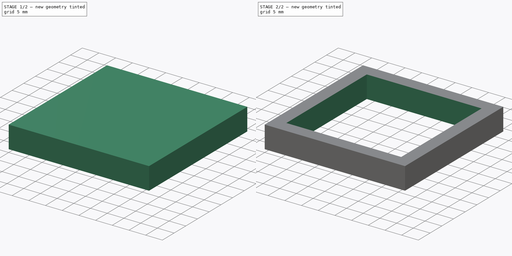
[diagram: build sequence overview — one tinted view per stage of 2, left to right]
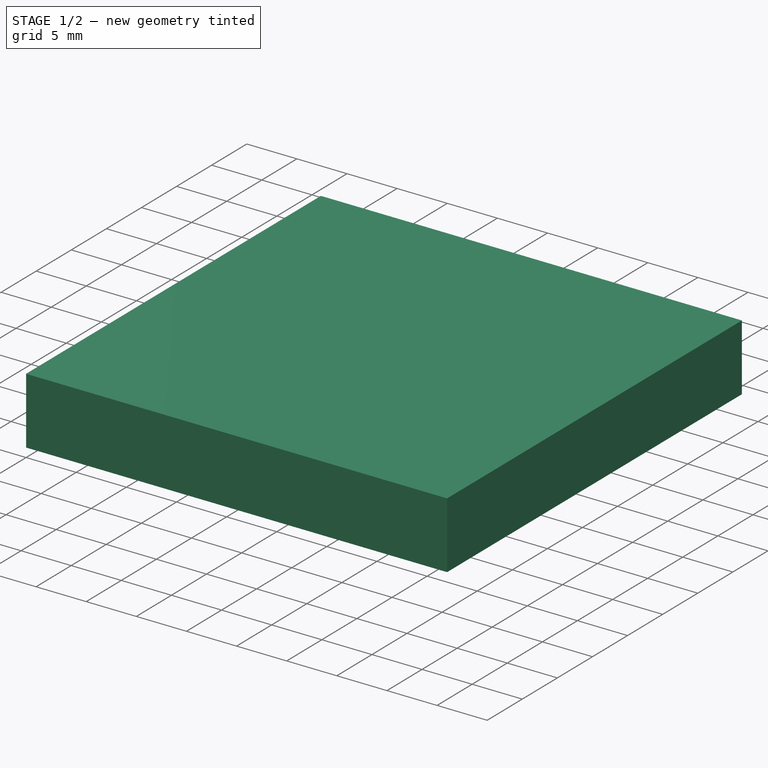
[diagram: stage 1 of 2 — iso view after this stage's code; geometry added in this stage tinted green]
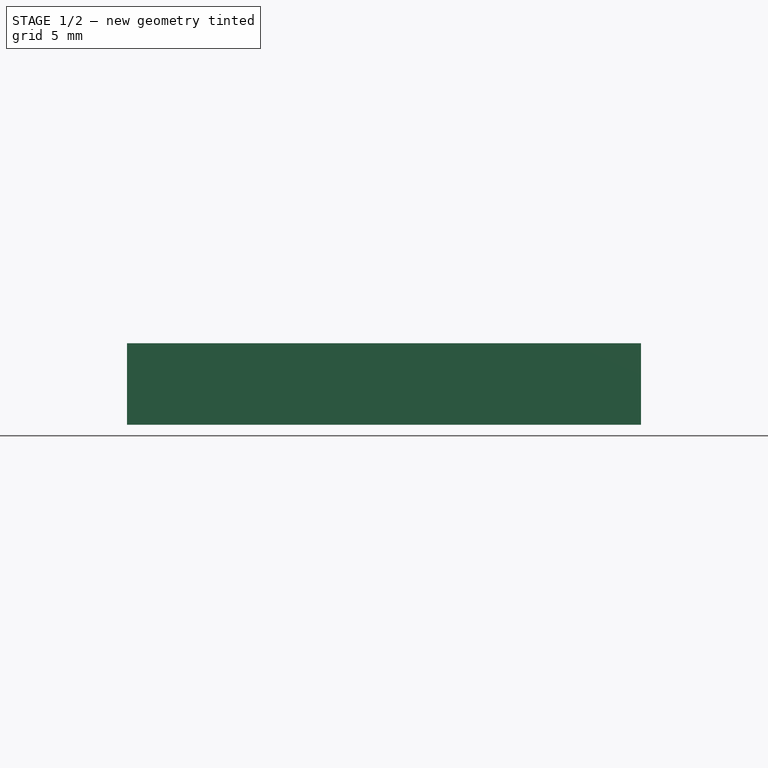
[diagram: stage 1 of 2 — front view after this stage's code; geometry added in this stage tinted green]
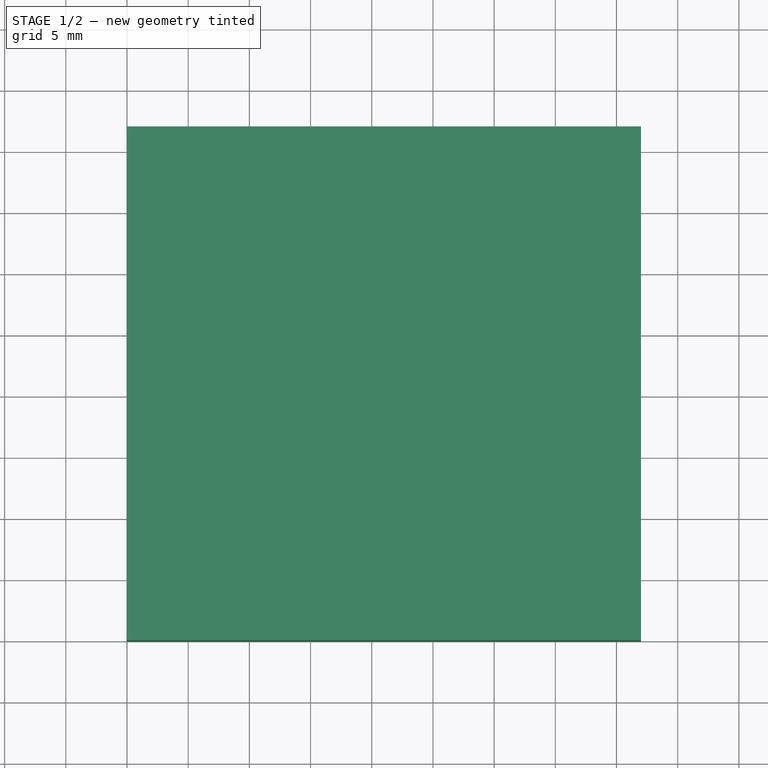
[diagram: stage 1 of 2 — top view after this stage's code; geometry added in this stage tinted green]
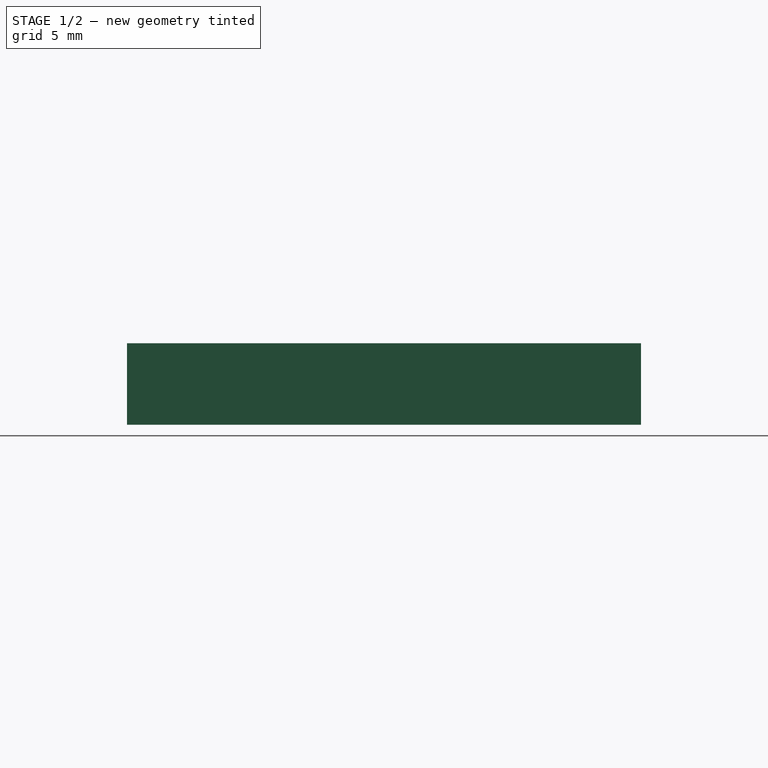
[diagram: stage 1 of 2 — right view after this stage's code; geometry added in this stage tinted green]
FCSTD DOCUMENT  (FreeCAD 2023.131R26244 +5365 (Git))
Label: Gridfinity
License: All rights reserved
LicenseURL: http://en.wikipedia.org/wiki/All_rights_reserved
objects: Sketcher::SketchObject×2, Spreadsheet::Sheet×1, PartDesign::Pad×1, PartDesign::Pocket×1, PartDesign::Body×1
note: 11 computed .brp shape members not serialized (recipe doc carries the construction recipe); baked Part::Feature solids carry a one-line shape summary decoded from their .brp

FEATURE [Spreadsheet::Sheet] Spreadsheet  label="Parameters"
  PythonMode = false
  ShowCells = 0
  TreeRank = 1
  cells = A1=User Defined Parameters; A2=Columns; B2(Columns)=1; A3=Rows; B3(Rows)=1; A5=Calculated Parameters; A6=Baseplate Width; B6(Baseplate_Width)==Columns * Grid_Size; A7=Baseplate Length; B7(Baseplate_Length)==Rows * Grid_Size; A8=Container Width; B8(Container_Width)==Baseplate_Width - 0.5; A9=Container Length; B9(Container_Length)==Baseplate_Length - 0.5; A11=General Parameters; A12=Width & Length; B12(Grid_Size)=42; A13=Layer 1 Height; B13(Layer1_Height)=0.7; C13=Used on baseplate and containers to make parts nest together; A14=Layer 1 Angle; B14(Layer1_Angle)=45; C14=Used on baseplate and containers to make parts nest together; A15=Layer 2 Height; B15(Layer2_Height)=1.8; C15=Used on baseplate and containers to make parts nest together; A16=Layer 2 Angle; B16(Layer2_Angle)=90; C16=Used on baseplate and containers to make parts nest together; A17=Layer 3 Height; B17(Layer3_Height)=2.15; C17=Used on baseplate and containers to make parts nest together; A18=Layer 3 Angle; B18(Layer3_Angle)=45; C18=Used on baseplate and containers to make parts nest together; A19=Magnet Diameter; B19(Magnet_Diameter)=6; C19=Used on baseplate and containers.; A20=Magnet Height; B20(Magnet_Height)=2; C20=Used on baseplate and containers. Set to zero to disable.; A22=Baseplate Parameters; A23=Total Height; B23(Baseplate_Height)==Layer1_Height + Layer2_Height + Layer3_Height + Magnet_Height; A24=Corner Radius; B24(Baseplate_Corner_Radius)=8; A25=Wall Thickness; B25(Baseplate_Wall_Thickness)==Layer3_Height * sin(Layer3_Angle) + Layer2_Height * sin(Layer2_Angle) + Layer1_Height * sin(Layer1_Angle); A27=Container Parameters; A28=Internal Height; B28(Container_Height)=7; C28=Typically a multiple of 7mm. 1U = 7mm, 2U = 14mm, 4U = 28mm, etc.; A29=Wall Thickness; B29(Wall_Thickness)=2.15; A30=Wall Radius; B30(Container_Wall_Radius)=7.5; A31=Base Radius; B31(Container_Base_Radius)=1.6; A32=Magnet Offset; B32(Container_Magnet_Offset)=4.8
FEATURE [Sketcher::SketchObject] Sketch
  ArcFitTolerance = 1e-06
  AttachmentSupport = -> [XY_Plane]
  ExternalBSplineMaxDegree = 5
  ExternalBSplineTolerance = 0.0001
  FullyConstrained = true
  InternalTolerance = 1e-06
  InvalidShape = false
  MakeInternals = false
  MapMode = 5
  Support = -> [XY_Plane]
  TreeRank = 12
  ValidateShape = true
  expr: Constraints[10] = <<Parameters>>.Baseplate_Length
  expr: Constraints[9] = <<Parameters>>.Baseplate_Width
  sketch-geometry (4):
    g0: LineSegment StartX=0 StartY=0 StartZ=0 EndX=42 EndY=0 EndZ=0
    g1: LineSegment StartX=42 StartY=0 StartZ=0 EndX=42 EndY=42 EndZ=0
    g2: LineSegment StartX=42 StartY=42 StartZ=0 EndX=0 EndY=42 EndZ=0
    g3: LineSegment StartX=0 StartY=42 StartZ=0 EndX=0 EndY=0 EndZ=0
  constraints (11):
    c: Coincident(g0,g1)
    c: Coincident(g1,g2)
    c: Coincident(g2,g3)
    c: Coincident(g3,g0)
    c: Horizontal(g0)
    c: Horizontal(g2)
    c: Vertical(g1)
    c: Vertical(g3)
    c: Coincident(g0,g-1)
    c: DistanceX(g0,g0) = 42
    c: DistanceY(g0,g2) = 42
FEATURE [PartDesign::Pad] Pad
  AddSubType = 0
  AlongSketchNormal = false
  AutoTaperInnerAngle = true
  CheckUpToFaceLimits = true
  ClaimChildren = false
  Direction = (0,0,1)
  Fit = 0
  FitJoin = 0
  InnerFit = 0
  InnerFitJoin = 0
  InvalidShape = false
  Length = 6.65
  Length2 = 100
  Linearize = true
  NewSolid = false
  Profile = -> Sketch
  Suppress = false
  TaperInnerAngle = 0
  TaperInnerAngleRev = 0
  TreeRank = 13
  Type = 0
  ValidateShape = true
  _ProfileBasedVersion = 1
  expr: Length = <<Parameters>>.Baseplate_Height
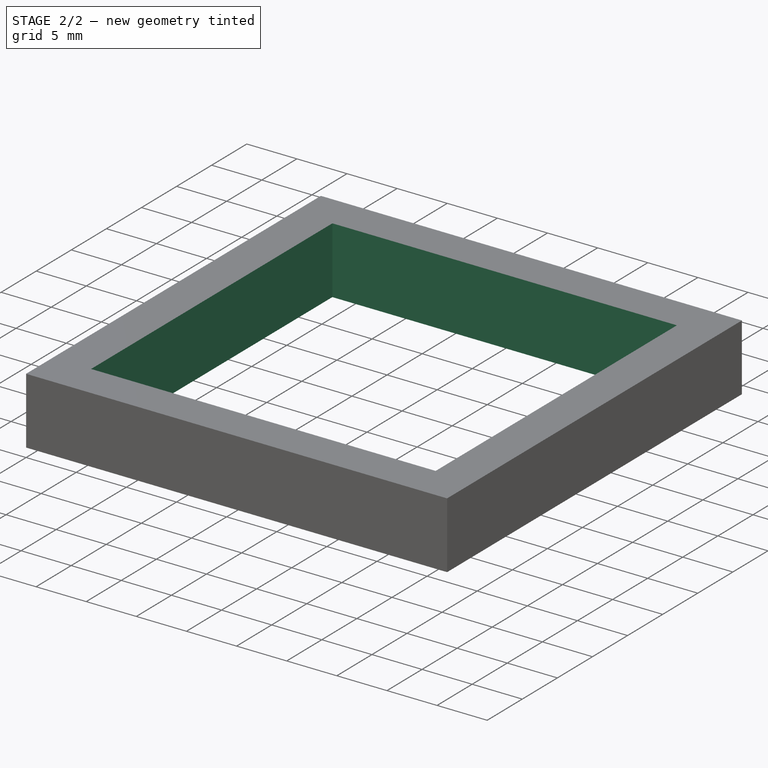
[diagram: stage 2 of 2 — iso view after this stage's code; geometry added in this stage tinted green]
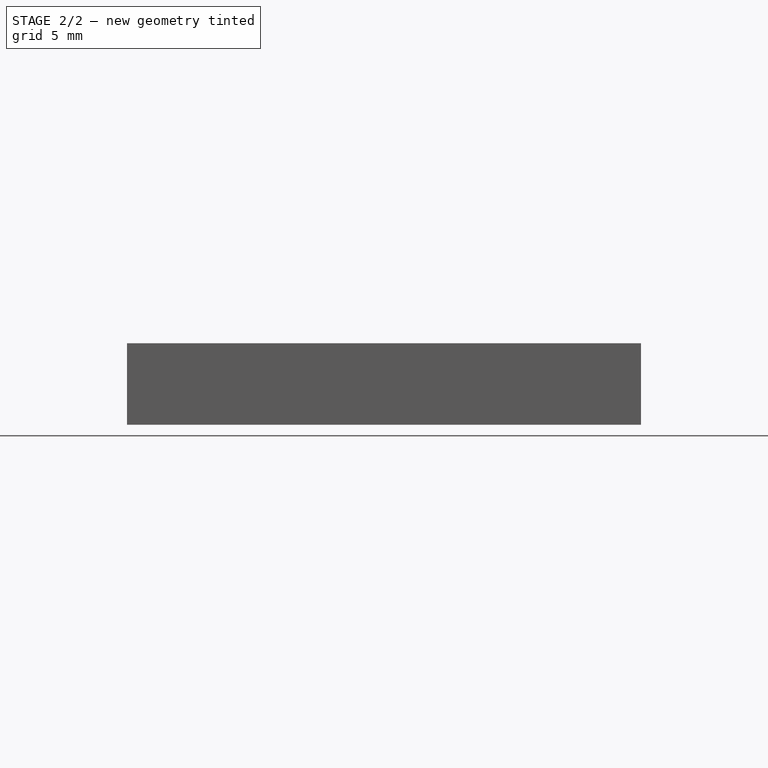
[diagram: stage 2 of 2 — front view after this stage's code; geometry added in this stage tinted green]
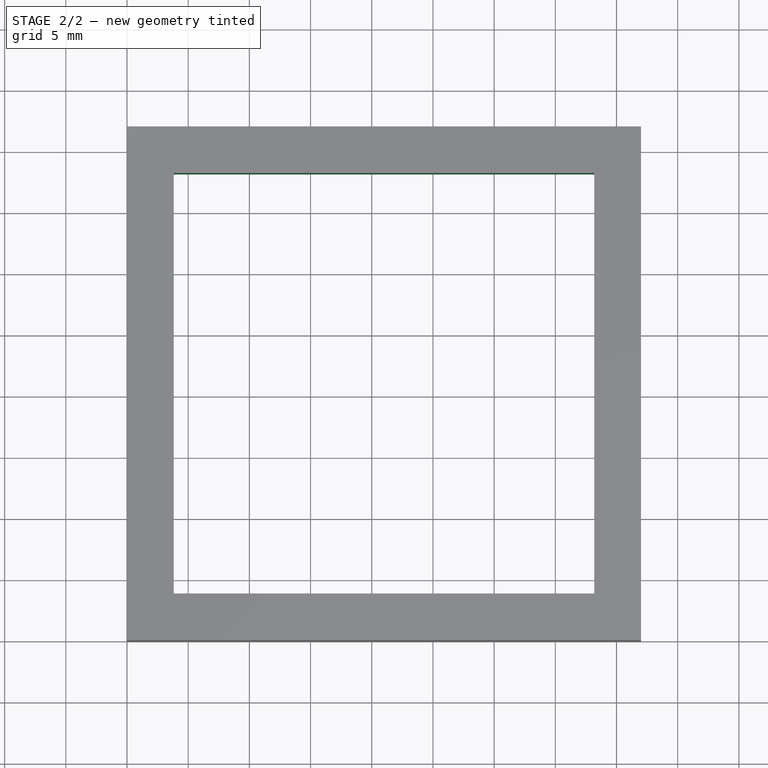
[diagram: stage 2 of 2 — top view after this stage's code; geometry added in this stage tinted green]
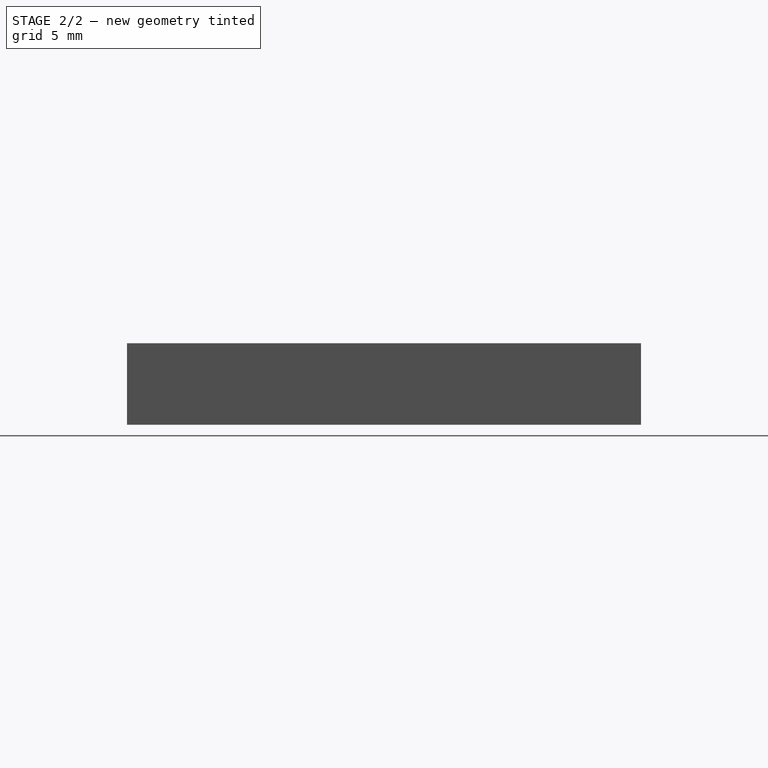
[diagram: stage 2 of 2 — right view after this stage's code; geometry added in this stage tinted green]
FEATURE [Sketcher::SketchObject] Sketch001
  ArcFitTolerance = 1e-06
  AttachmentSupport = -> [Pad]
  ExternalBSplineMaxDegree = 5
  ExternalBSplineTolerance = 0.0001
  FullyConstrained = true
  InternalTolerance = 1e-06
  InvalidShape = false
  MakeInternals = false
  MapMode = 5
  Placement = pos=(0,0,6.65) rot=(0,0,1;0rad)
  Support = -> [Pad]
  TreeRank = 14
  ValidateShape = true
  expr: Constraints[10] = <<Parameters>>.Grid_Size - <<Parameters>>.Baseplate_Wall_Thickness
  expr: Constraints[11] = <<Parameters>>.Grid_Size - <<Parameters>>.Baseplate_Wall_Thickness
  expr: Constraints[8] = <<Parameters>>.Baseplate_Wall_Thickness
  expr: Constraints[9] = <<Parameters>>.Baseplate_Wall_Thickness
  sketch-geometry (4):
    g0: LineSegment StartX=3.81525 StartY=3.81525 StartZ=0 EndX=38.1847 EndY=3.81525 EndZ=0
    g1: LineSegment StartX=38.1847 StartY=3.81525 StartZ=0 EndX=38.1847 EndY=38.1847 EndZ=0
    g2: LineSegment StartX=38.1847 StartY=38.1847 StartZ=0 EndX=3.81525 EndY=38.1847 EndZ=0
    g3: LineSegment StartX=3.81525 StartY=38.1847 StartZ=0 EndX=3.81525 EndY=3.81525 EndZ=0
  constraints (12):
    c: Coincident(g0,g1)
    c: Coincident(g1,g2)
    c: Coincident(g2,g3)
    c: Coincident(g3,g0)
    c: Horizontal(g0)
    c: Horizontal(g2)
    c: Vertical(g1)
    c: Vertical(g3)
    c: DistanceY(g-1,g0) = 3.81525
    c: DistanceX(g-1,g0) = 3.81525
    c: DistanceX(g-1,g0) = 38.1847
    c: DistanceY(g-1,g2) = 38.1847
FEATURE [PartDesign::Pocket] Pocket
  AddSubType = 1
  AutoTaperInnerAngle = true
  BaseFeature = -> Pad
  CheckUpToFaceLimits = true
  ClaimChildren = false
  Fit = 0
  FitJoin = 0
  InnerFit = 0
  InnerFitJoin = 0
  InvalidShape = false
  Length = 5
  Length2 = 100
  Linearize = true
  NewSolid = false
  Profile = -> Sketch001
  Suppress = false
  TaperInnerAngle = 0
  TaperInnerAngleRev = 0
  TreeRank = 15
  Type = 1
  ValidateShape = true
  _ProfileBasedVersion = 1
  _Version = 1
FEATURE [PartDesign::Body] Body  label="Baseplate"
  AutoGroupSolids = false
  ClaimAllChildren = false
  ExportMode = 0
  Group = -> [Sketch,Pad,Sketch001,Pocket]
  InvalidShape = false
  Origin = -> Origin
  Tip = -> Pocket
  TreeRank = 11
  ValidateShape = true
  _ExportChildren = -> [Pad,Pocket]
  _GroupVersion = 1
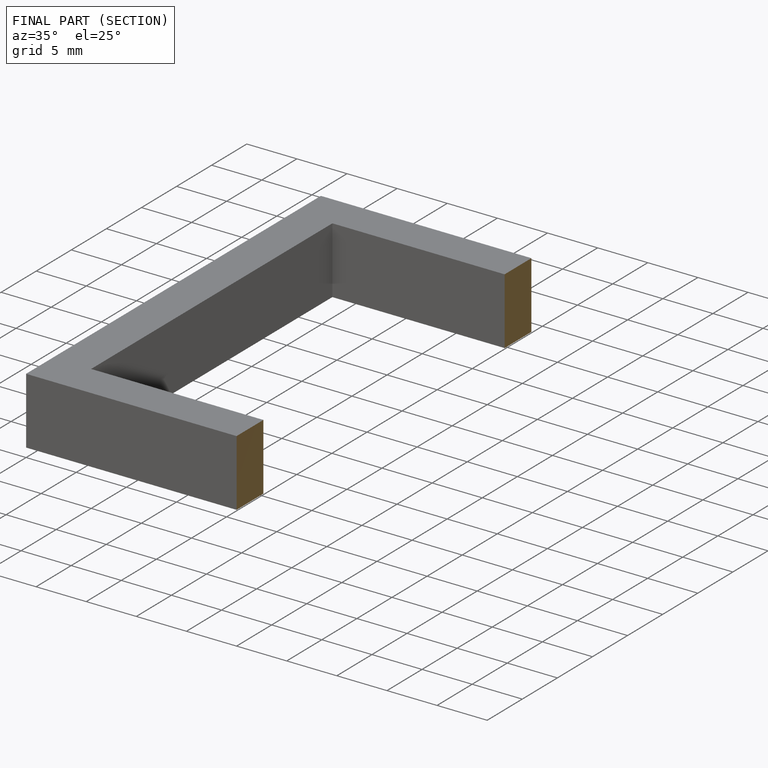
[diagram: finished part — half-section view (interior)]
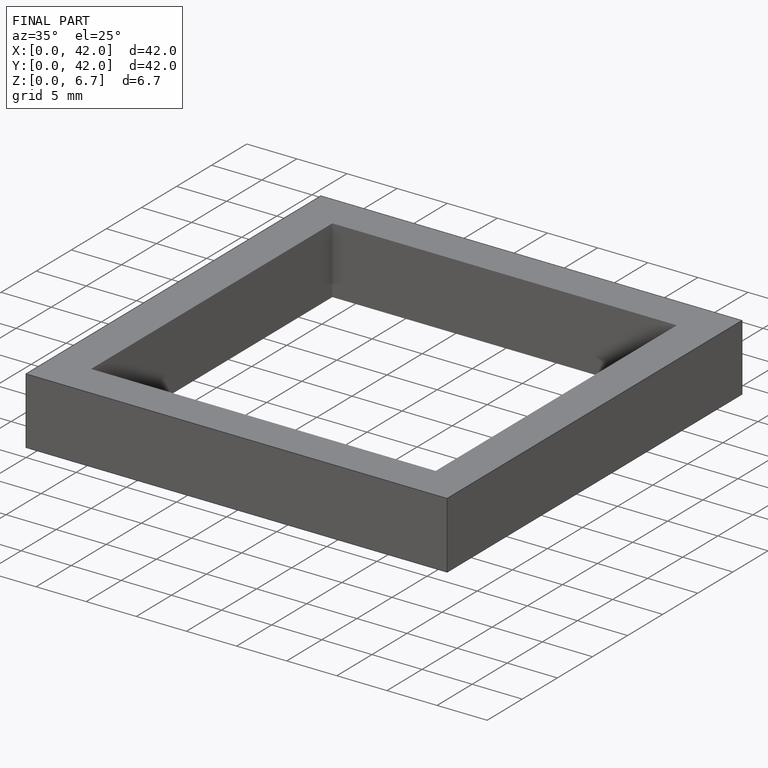
[diagram: finished part — iso view with bounding-box wireframe]
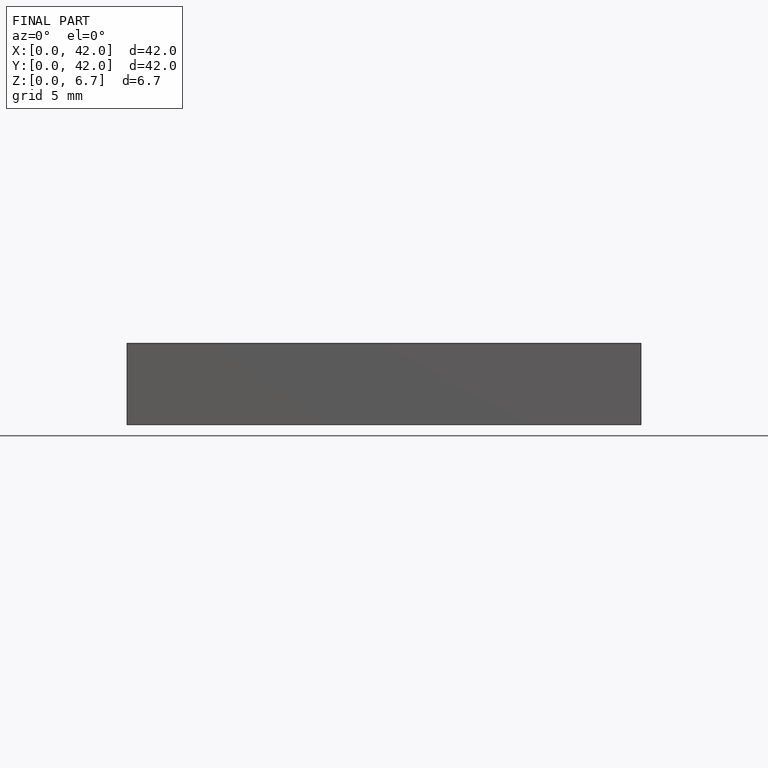
[diagram: finished part — front view with bounding-box wireframe]
